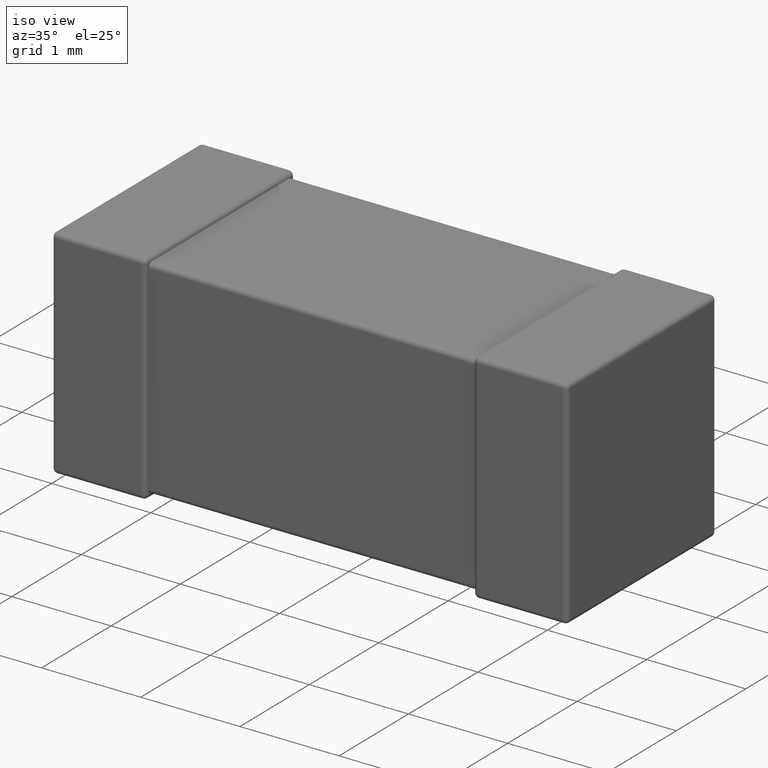
[diagram: clean part render]
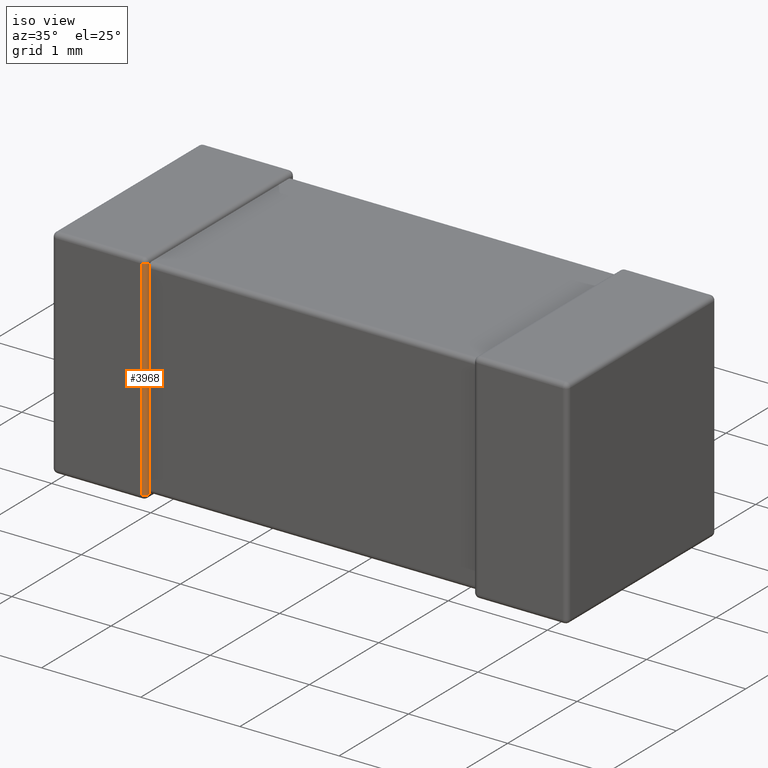
[diagram: same view with one face highlighted and labeled with its STEP entity id]
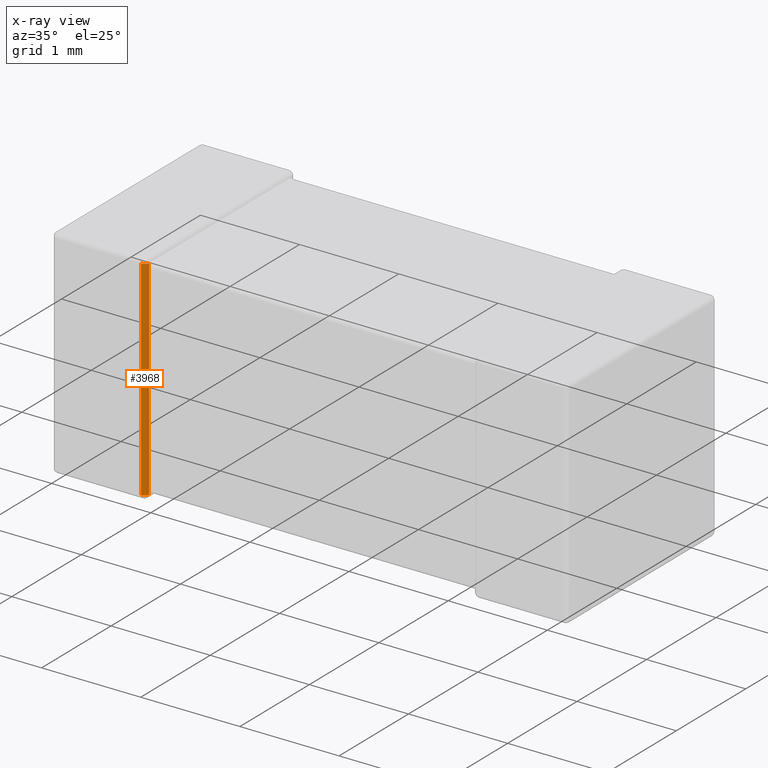
[diagram: x-ray of the same camera — body ghosted, the highlighted face saturated]
A machine part, iso view. The second image highlights one B-rep face of the part: STEP entity #3968.
The next image is the same camera in x-ray: the body ghosted, the highlighted face saturated — about 0% of this face is hidden behind the body in this view.
In plain terms, the highlighted cylindrical surface (edge-blend (fillet) strip) has radius 0.0458 mm, axis along (0, 0, 1).
Its self-contained STEP definition (entity closure, byte-faithful):
#73 = CIRCLE ( 'NONE', #228, 0.04576000000000005100 ) ;
#88 = DIRECTION ( 'NONE',  ( 0.0000000000000000000, 0.0000000000000000000, 1.000000000000000000 ) ) ;
#226 = EDGE_CURVE ( 'NONE', #1526, #1544, #1995, .T. ) ;
#228 = AXIS2_PLACEMENT_3D ( 'NONE', #2421, #1740, #330 ) ;
#310 = ORIENTED_EDGE ( 'NONE', *, *, #596, .T. ) ;
#330 = DIRECTION ( 'NONE',  ( -1.000000000000000000, 0.0000000000000000000, 0.0000000000000000000 ) ) ;
#356 = CARTESIAN_POINT ( 'NONE',  ( 0.9499999999999998400, 0.04575999999999972500, -0.09152000000000032300 ) ) ;
#398 = CARTESIAN_POINT ( 'NONE',  ( 0.9042400000000196900, 0.04576000000000000200, -0.04576000000000000200 ) ) ;
#466 = VERTEX_POINT ( 'NONE', #2494 ) ;
#536 = EDGE_CURVE ( 'NONE', #1544, #2461, #4422, .T. ) ;
#596 = EDGE_CURVE ( 'NONE', #3743, #1526, #3701, .T. ) ;
#614 = EDGE_LOOP ( 'NONE', ( #3312, #4373, #310, #1494, #3915, #1774 ) ) ;
#699 = CARTESIAN_POINT ( 'NONE',  ( 0.9042400000000196900, 0.0000000000000000000, -2.154240000000000200 ) ) ;
#758 = AXIS2_PLACEMENT_3D ( 'NONE', #2074, #1702, #4248 ) ;
#801 = DIRECTION ( 'NONE',  ( -3.405901710987591600E-015, -0.0000000000000000000, -1.000000000000000000 ) ) ;
#821 = VECTOR ( 'NONE', #4118, 1000.000000000000000 ) ;
#823 = FACE_OUTER_BOUND ( 'NONE', #614, .T. ) ;
#1063 = EDGE_CURVE ( 'NONE', #466, #3743, #3690, .T. ) ;
#1494 = ORIENTED_EDGE ( 'NONE', *, *, #226, .T. ) ;
#1526 = VERTEX_POINT ( 'NONE', #356 ) ;
#1544 = VERTEX_POINT ( 'NONE', #2900 ) ;
#1702 = DIRECTION ( 'NONE',  ( 0.0000000000000000000, 0.0000000000000000000, 1.000000000000000000 ) ) ;
#1740 = DIRECTION ( 'NONE',  ( -0.0000000000000000000, -0.0000000000000000000, 1.000000000000000000 ) ) ;
#1774 = ORIENTED_EDGE ( 'NONE', *, *, #4193, .F. ) ;
#1995 = LINE ( 'NONE', #3818, #3950 ) ;
#2028 = CYLINDRICAL_SURFACE ( 'NONE', #758, 0.04576000000000005100 ) ;
#2071 = VECTOR ( 'NONE', #4269, 1000.000000000000000 ) ;
#2074 = CARTESIAN_POINT ( 'NONE',  ( 0.9042400000000196900, 0.04576000000000000200, 0.0000000000000000000 ) ) ;
#2421 = CARTESIAN_POINT ( 'NONE',  ( 0.9042400000000193600, 0.04576000000000000200, -2.154240000000000200 ) ) ;
#2461 = VERTEX_POINT ( 'NONE', #4330 ) ;
#2473 = LINE ( 'NONE', #4064, #3753 ) ;
#2494 = CARTESIAN_POINT ( 'NONE',  ( 0.9499999999999998400, 0.04575999999999972500, -2.154240000000000200 ) ) ;
#2900 = CARTESIAN_POINT ( 'NONE',  ( 0.9499999999999998400, 0.04575999999999972500, -0.04576000000000016200 ) ) ;
#3312 = ORIENTED_EDGE ( 'NONE', *, *, #4492, .T. ) ;
#3327 = DIRECTION ( 'NONE',  ( 1.000000000000000000, 0.0000000000000000000, -3.405901710987567500E-015 ) ) ;
#3383 = CARTESIAN_POINT ( 'NONE',  ( 0.9499999999999998400, 0.04575999999999972500, -2.200000000000000200 ) ) ;
#3690 = LINE ( 'NONE', #4637, #2071 ) ;
#3701 = LINE ( 'NONE', #3383, #821 ) ;
#3743 = VERTEX_POINT ( 'NONE', #4502 ) ;
#3753 = VECTOR ( 'NONE', #88, 1000.000000000000000 ) ;
#3818 = CARTESIAN_POINT ( 'NONE',  ( 0.9500000000000197200, 0.04576000000000000200, 0.0000000000000000000 ) ) ;
#3846 = DIRECTION ( 'NONE',  ( 0.0000000000000000000, 0.0000000000000000000, 1.000000000000000000 ) ) ;
#3915 = ORIENTED_EDGE ( 'NONE', *, *, #536, .T. ) ;
#3950 = VECTOR ( 'NONE', #3846, 1000.000000000000000 ) ;
#3968 = ADVANCED_FACE ( 'NONE', ( #823 ), #2028, .T. ) ;
#4064 = CARTESIAN_POINT ( 'NONE',  ( 0.9042400000000196900, 0.0000000000000000000, 0.0000000000000000000 ) ) ;
#4118 = DIRECTION ( 'NONE',  ( -0.0000000000000000000, -0.0000000000000000000, 1.000000000000000000 ) ) ;
#4193 = EDGE_CURVE ( 'NONE', #4509, #2461, #2473, .T. ) ;
#4248 = DIRECTION ( 'NONE',  ( 1.000000000000000000, 0.0000000000000000000, 0.0000000000000000000 ) ) ;
#4269 = DIRECTION ( 'NONE',  ( 0.0000000000000000000, 0.0000000000000000000, 1.000000000000000000 ) ) ;
#4330 = CARTESIAN_POINT ( 'NONE',  ( 0.9042400000000196900, 0.0000000000000000000, -0.04576000000000000200 ) ) ;
#4373 = ORIENTED_EDGE ( 'NONE', *, *, #1063, .T. ) ;
#4422 = CIRCLE ( 'NONE', #4650, 0.04576000000000005100 ) ;
#4492 = EDGE_CURVE ( 'NONE', #4509, #466, #73, .T. ) ;
#4502 = CARTESIAN_POINT ( 'NONE',  ( 0.9499999999999998400, 0.04575999999999972500, -2.108479999999999700 ) ) ;
#4509 = VERTEX_POINT ( 'NONE', #699 ) ;
#4637 = CARTESIAN_POINT ( 'NONE',  ( 0.9500000000000197200, 0.04576000000000000200, 0.0000000000000000000 ) ) ;
#4650 = AXIS2_PLACEMENT_3D ( 'NONE', #398, #801, #3327 ) ;